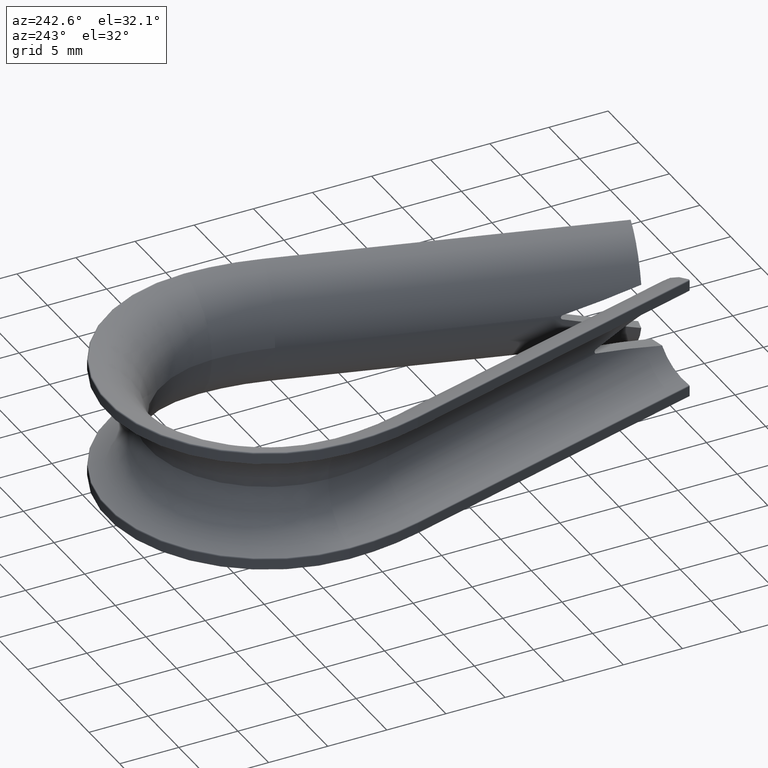
[diagram: clean part render]
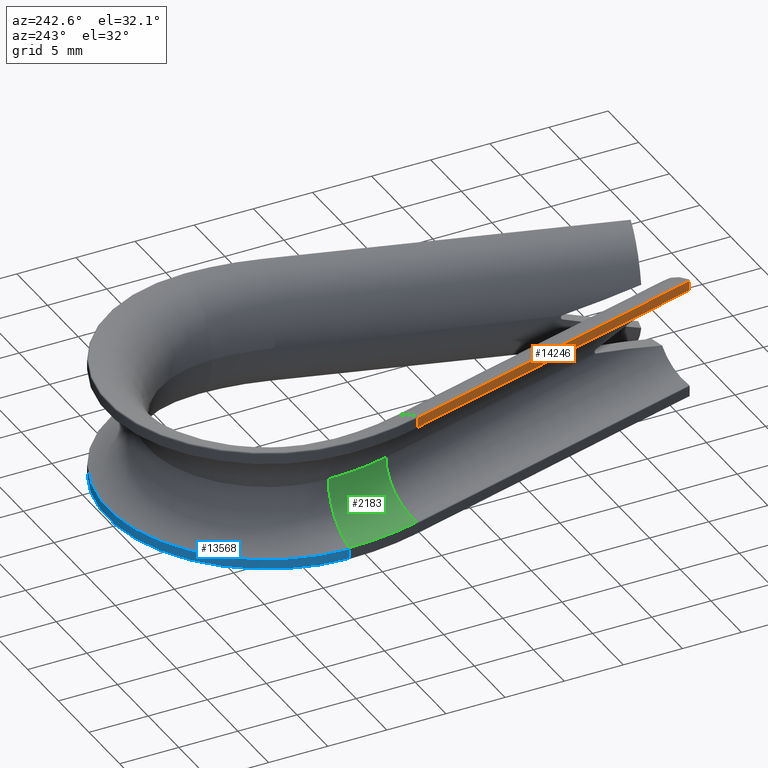
[diagram: same view with three faces highlighted in distinct colors, each labeled with its STEP entity id]
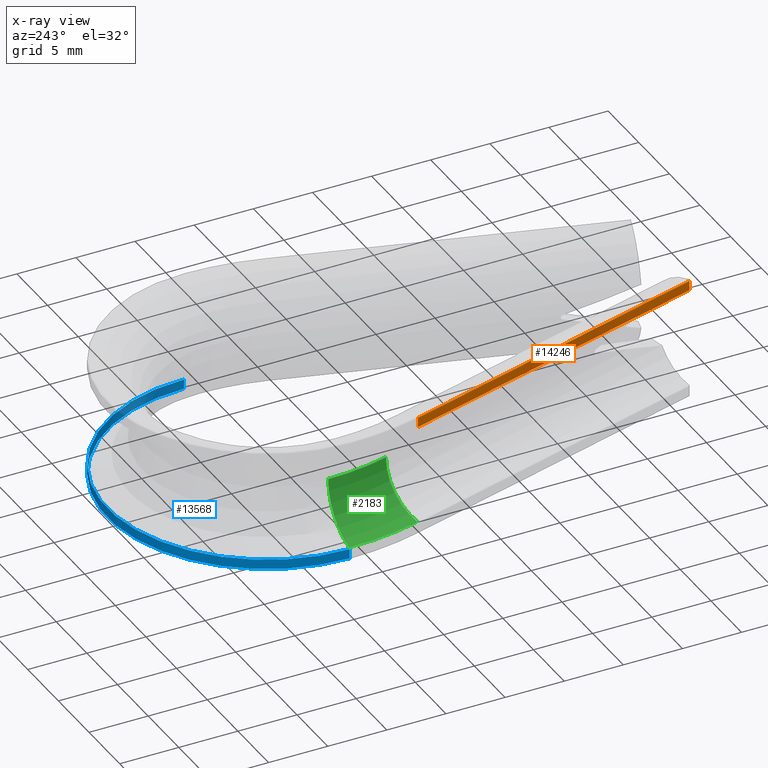
[diagram: x-ray of the same camera — body ghosted, the three highlighted faces saturated]
A machine part, auxiliary view with three faces highlighted in distinct colors.
The next image is the same camera in x-ray (body ghosted, the three faces saturated) — at least one of them is partly hidden behind the body in this view.
Their STEP definitions:

[orange] entity #14246 — the highlighted planar face has unit normal (0.9608, 0.2773, -0).
#619 = LINE ( 'NONE', #6915, #13398 ) ;
#728 = EDGE_LOOP ( 'NONE', ( #2879, #12621, #4199, #12555 ) ) ;
#1238 = CARTESIAN_POINT ( 'NONE',  ( -12.61785741753974600, 25.76155142083212000, 5.196152422706632000 ) ) ;
#1330 = EDGE_CURVE ( 'NONE', #3191, #5348, #619, .T. ) ;
#2879 = ORIENTED_EDGE ( 'NONE', *, *, #11562, .F. ) ;
#3191 = VERTEX_POINT ( 'NONE', #8711 ) ;
#3213 = DIRECTION ( 'NONE',  ( -0.2772643812963506700, 0.9607936630017663800, 0.0000000000000000000 ) ) ;
#3214 = LINE ( 'NONE', #6839, #11897 ) ;
#4199 = ORIENTED_EDGE ( 'NONE', *, *, #4434, .T. ) ;
#4275 = DIRECTION ( 'NONE',  ( 0.0000000000000000000, 0.0000000000000000000, 1.000000000000000000 ) ) ;
#4339 = LINE ( 'NONE', #6105, #11855 ) ;
#4434 = EDGE_CURVE ( 'NONE', #10436, #3191, #3214, .T. ) ;
#4523 = CARTESIAN_POINT ( 'NONE',  ( -12.61785741753974600, 25.76155142083212000, 4.266145801540307800 ) ) ;
#5348 = VERTEX_POINT ( 'NONE', #7757 ) ;
#6105 = CARTESIAN_POINT ( 'NONE',  ( -12.61785741753974600, 25.76155142083212000, 4.266145801540307800 ) ) ;
#6826 = FACE_OUTER_BOUND ( 'NONE', #728, .T. ) ;
#6839 = CARTESIAN_POINT ( 'NONE',  ( -4.823571483507946000, -1.247689715833572700, 5.196152422706632000 ) ) ;
#6915 = CARTESIAN_POINT ( 'NONE',  ( -12.61785741753974600, 25.76155142083212000, 5.079370039680116900 ) ) ;
#7757 = CARTESIAN_POINT ( 'NONE',  ( -12.61785741753974600, 25.76155142083212000, 5.079370039680118700 ) ) ;
#8088 = AXIS2_PLACEMENT_3D ( 'NONE', #9461, #15543, #3213 ) ;
#8594 = DIRECTION ( 'NONE',  ( 0.0000000000000000000, 0.0000000000000000000, 1.000000000000000000 ) ) ;
#8711 = CARTESIAN_POINT ( 'NONE',  ( -4.823571483507946000, -1.247689715833572700, 5.079370039680116900 ) ) ;
#8712 = DIRECTION ( 'NONE',  ( 0.2772643812963506700, -0.9607936630017663800, 0.0000000000000000000 ) ) ;
#9204 = DIRECTION ( 'NONE',  ( -0.2772643812963506700, 0.9607936630017663800, -0.0000000000000000000 ) ) ;
#9295 = PLANE ( 'NONE',  #8088 ) ;
#9461 = CARTESIAN_POINT ( 'NONE',  ( -12.61785741753974600, 25.76155142083212000, 5.196152422706632000 ) ) ;
#10436 = VERTEX_POINT ( 'NONE', #12149 ) ;
#10572 = VECTOR ( 'NONE', #8594, 1000.000000000000000 ) ;
#11562 = EDGE_CURVE ( 'NONE', #12556, #5348, #14413, .T. ) ;
#11855 = VECTOR ( 'NONE', #8712, 1000.000000000000000 ) ;
#11897 = VECTOR ( 'NONE', #4275, 1000.000000000000000 ) ;
#12149 = CARTESIAN_POINT ( 'NONE',  ( -4.823571483507946000, -1.247689715833572700, 4.266145801540307800 ) ) ;
#12555 = ORIENTED_EDGE ( 'NONE', *, *, #1330, .T. ) ;
#12556 = VERTEX_POINT ( 'NONE', #4523 ) ;
#12621 = ORIENTED_EDGE ( 'NONE', *, *, #14051, .T. ) ;
#13398 = VECTOR ( 'NONE', #9204, 1000.000000000000000 ) ;
#14051 = EDGE_CURVE ( 'NONE', #12556, #10436, #4339, .T. ) ;
#14246 = ADVANCED_FACE ( 'NONE', ( #6826 ), #9295, .F. ) ;
#14413 = LINE ( 'NONE', #1238, #10572 ) ;
#15543 = DIRECTION ( 'NONE',  ( 0.9607936630017665000, 0.2772643812963507300, -0.0000000000000000000 ) ) ;

[blue] entity #13568 — the highlighted cylindrical surface (partial cylindrical patch) has radius 13.5 mm, axis along (0, 0, 1).
#193 = ORIENTED_EDGE ( 'NONE', *, *, #12431, .T. ) ;
#1258 = CARTESIAN_POINT ( 'NONE',  ( -13.49999999999999800, 32.00000000000000000, -4.266145801540307800 ) ) ;
#1605 = DIRECTION ( 'NONE',  ( 1.000000000000000000, 0.0000000000000000000, 0.0000000000000000000 ) ) ;
#1694 = EDGE_CURVE ( 'NONE', #2958, #9652, #5995, .T. ) ;
#2269 = CARTESIAN_POINT ( 'NONE',  ( -13.49999999999999800, 32.00000000000000000, -4.183300132670377800 ) ) ;
#2330 = DIRECTION ( 'NONE',  ( -0.0000000000000000000, -0.0000000000000000000, -1.000000000000000000 ) ) ;
#2663 = CARTESIAN_POINT ( 'NONE',  ( 13.49999999999999800, 32.00000000000000000, -4.183300132670377800 ) ) ;
#2958 = VERTEX_POINT ( 'NONE', #1258 ) ;
#3618 = DIRECTION ( 'NONE',  ( -1.000000000000000000, 0.0000000000000000000, 0.0000000000000000000 ) ) ;
#4163 = CARTESIAN_POINT ( 'NONE',  ( 0.0000000000000000000, 32.00000000000000000, -5.079370039680117800 ) ) ;
#4317 = LINE ( 'NONE', #2269, #5473 ) ;
#4571 = DIRECTION ( 'NONE',  ( 0.0000000000000000000, 0.0000000000000000000, 1.000000000000000000 ) ) ;
#4898 = CYLINDRICAL_SURFACE ( 'NONE', #14312, 13.49999999999999800 ) ;
#5133 = CARTESIAN_POINT ( 'NONE',  ( 13.49999999999999800, 32.00000000000000000, -5.079370039680117800 ) ) ;
#5473 = VECTOR ( 'NONE', #15816, 1000.000000000000000 ) ;
#5995 = CIRCLE ( 'NONE', #12187, 13.49999999999999800 ) ;
#6741 = EDGE_LOOP ( 'NONE', ( #10430, #8329, #12340, #193 ) ) ;
#7793 = CIRCLE ( 'NONE', #15221, 13.49999999999999800 ) ;
#8127 = CARTESIAN_POINT ( 'NONE',  ( 13.49999999999999800, 32.00000000000000000, -4.266145801540307800 ) ) ;
#8329 = ORIENTED_EDGE ( 'NONE', *, *, #1694, .T. ) ;
#9030 = VERTEX_POINT ( 'NONE', #5133 ) ;
#9652 = VERTEX_POINT ( 'NONE', #8127 ) ;
#10037 = DIRECTION ( 'NONE',  ( 0.0000000000000000000, 0.0000000000000000000, 1.000000000000000000 ) ) ;
#10430 = ORIENTED_EDGE ( 'NONE', *, *, #13268, .T. ) ;
#10529 = DIRECTION ( 'NONE',  ( -1.000000000000000000, 0.0000000000000000000, 0.0000000000000000000 ) ) ;
#11138 = CARTESIAN_POINT ( 'NONE',  ( 0.0000000000000000000, 32.00000000000000000, -4.266145801540307800 ) ) ;
#11501 = CARTESIAN_POINT ( 'NONE',  ( -13.49999999999999800, 32.00000000000000000, -5.079370039680117800 ) ) ;
#11872 = FACE_OUTER_BOUND ( 'NONE', #6741, .T. ) ;
#12187 = AXIS2_PLACEMENT_3D ( 'NONE', #11138, #2330, #3618 ) ;
#12340 = ORIENTED_EDGE ( 'NONE', *, *, #12740, .F. ) ;
#12431 = EDGE_CURVE ( 'NONE', #9030, #16072, #7793, .T. ) ;
#12504 = CARTESIAN_POINT ( 'NONE',  ( 0.0000000000000000000, 32.00000000000000000, 0.0000000000000000000 ) ) ;
#12671 = VECTOR ( 'NONE', #4571, 1000.000000000000000 ) ;
#12740 = EDGE_CURVE ( 'NONE', #9030, #9652, #15967, .T. ) ;
#12878 = DIRECTION ( 'NONE',  ( 0.0000000000000000000, 0.0000000000000000000, 1.000000000000000000 ) ) ;
#13268 = EDGE_CURVE ( 'NONE', #16072, #2958, #4317, .T. ) ;
#13568 = ADVANCED_FACE ( 'NONE', ( #11872 ), #4898, .T. ) ;
#14312 = AXIS2_PLACEMENT_3D ( 'NONE', #12504, #10037, #1605 ) ;
#15221 = AXIS2_PLACEMENT_3D ( 'NONE', #4163, #12878, #10529 ) ;
#15816 = DIRECTION ( 'NONE',  ( 0.0000000000000000000, 0.0000000000000000000, 1.000000000000000000 ) ) ;
#15967 = LINE ( 'NONE', #2663, #12671 ) ;
#16072 = VERTEX_POINT ( 'NONE', #11501 ) ;

[green] entity #2183 — the highlighted toroidal blend (fillet) surface has major radius 23.25 mm and minor (blend) radius 4.25 mm.
#986 = AXIS2_PLACEMENT_3D ( 'NONE', #9008, #10305, #13903 ) ;
#1262 = VERTEX_POINT ( 'NONE', #10464 ) ;
#1341 = VERTEX_POINT ( 'NONE', #11712 ) ;
#1929 = ORIENTED_EDGE ( 'NONE', *, *, #3612, .F. ) ;
#2183 = ADVANCED_FACE ( 'NONE', ( #3631 ), #8283, .F. ) ;
#3231 = CIRCLE ( 'NONE', #986, 4.250000000000000000 ) ;
#3248 = DIRECTION ( 'NONE',  ( -0.0000000000000000000, 0.0000000000000000000, 1.000000000000000000 ) ) ;
#3392 = DIRECTION ( 'NONE',  ( 0.2772643812963505600, -0.9607936630017665000, 0.0000000000000000000 ) ) ;
#3498 = AXIS2_PLACEMENT_3D ( 'NONE', #14822, #9789, #4921 ) ;
#3612 = EDGE_CURVE ( 'NONE', #1262, #1341, #3231, .T. ) ;
#3631 = FACE_OUTER_BOUND ( 'NONE', #6689, .T. ) ;
#4053 = ORIENTED_EDGE ( 'NONE', *, *, #9243, .F. ) ;
#4402 = AXIS2_PLACEMENT_3D ( 'NONE', #11701, #12953, #9247 ) ;
#4484 = CARTESIAN_POINT ( 'NONE',  ( 9.000000000000001800, 32.00000000000000000, -5.204748896376250700E-016 ) ) ;
#4627 = DIRECTION ( 'NONE',  ( 1.000000000000000000, 0.0000000000000000000, 0.0000000000000000000 ) ) ;
#4629 = DIRECTION ( 'NONE',  ( 0.0000000000000000000, 0.0000000000000000000, -1.000000000000000000 ) ) ;
#4812 = CARTESIAN_POINT ( 'NONE',  ( -9.255079597033560600, 26.73197675536934500, 0.0000000000000000000 ) ) ;
#4921 = DIRECTION ( 'NONE',  ( 1.000000000000000000, 0.0000000000000000000, 0.0000000000000000000 ) ) ;
#5354 = ORIENTED_EDGE ( 'NONE', *, *, #9777, .T. ) ;
#5598 = AXIS2_PLACEMENT_3D ( 'NONE', #10905, #3392, #4629 ) ;
#5973 = AXIS2_PLACEMENT_3D ( 'NONE', #4484, #3248, #4627 ) ;
#6558 = ORIENTED_EDGE ( 'NONE', *, *, #14576, .T. ) ;
#6689 = EDGE_LOOP ( 'NONE', ( #4053, #1929, #5354, #6558 ) ) ;
#7427 = CIRCLE ( 'NONE', #3498, 22.41954022988502300 ) ;
#8283 = TOROIDAL_SURFACE ( 'NONE', #4402, 23.25000000000000000, 4.250000000000000000 ) ;
#8762 = CIRCLE ( 'NONE', #5598, 4.250000000000000000 ) ;
#8800 = CARTESIAN_POINT ( 'NONE',  ( -12.54055218028713600, 25.78386004921216900, -4.168073484263695500 ) ) ;
#9008 = CARTESIAN_POINT ( 'NONE',  ( -14.24999999999999800, 32.00000000000000000, 0.0000000000000000000 ) ) ;
#9243 = EDGE_CURVE ( 'NONE', #1341, #15489, #14707, .T. ) ;
#9247 = DIRECTION ( 'NONE',  ( 1.000000000000000000, 0.0000000000000000000, 0.0000000000000000000 ) ) ;
#9777 = EDGE_CURVE ( 'NONE', #1262, #14366, #7427, .T. ) ;
#9789 = DIRECTION ( 'NONE',  ( -0.0000000000000000000, 0.0000000000000000000, 1.000000000000000000 ) ) ;
#10305 = DIRECTION ( 'NONE',  ( 1.608122649676636600E-016, -1.000000000000000000, 0.0000000000000000000 ) ) ;
#10464 = CARTESIAN_POINT ( 'NONE',  ( -13.41954022988475800, 32.00000000000000000, -4.168073484263397100 ) ) ;
#10905 = CARTESIAN_POINT ( 'NONE',  ( -13.33845266479107000, 25.55360313485985200, 0.0000000000000000000 ) ) ;
#11701 = CARTESIAN_POINT ( 'NONE',  ( 9.000000000000001800, 32.00000000000000000, 0.0000000000000000000 ) ) ;
#11712 = CARTESIAN_POINT ( 'NONE',  ( -9.999999999999998200, 32.00000000000000000, -5.204748896376250700E-016 ) ) ;
#12953 = DIRECTION ( 'NONE',  ( -0.0000000000000000000, 0.0000000000000000000, 1.000000000000000000 ) ) ;
#13903 = DIRECTION ( 'NONE',  ( 0.0000000000000000000, 0.0000000000000000000, -1.000000000000000000 ) ) ;
#14366 = VERTEX_POINT ( 'NONE', #8800 ) ;
#14576 = EDGE_CURVE ( 'NONE', #14366, #15489, #8762, .T. ) ;
#14707 = CIRCLE ( 'NONE', #5973, 19.00000000000000000 ) ;
#14822 = CARTESIAN_POINT ( 'NONE',  ( 9.000000000000001800, 32.00000000000000000, -4.168073484263695500 ) ) ;
#15489 = VERTEX_POINT ( 'NONE', #4812 ) ;